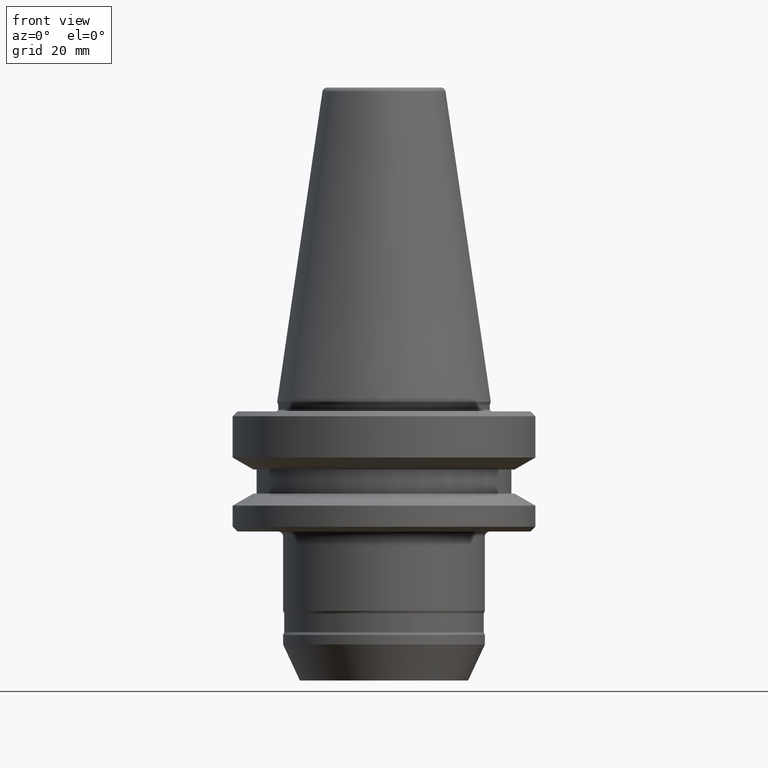
[diagram: clean part render]
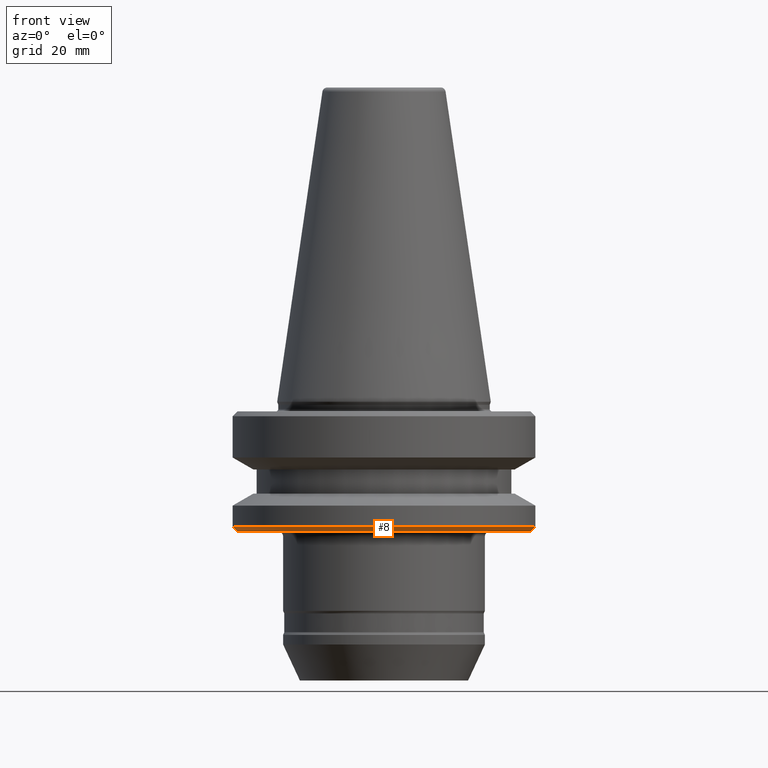
[diagram: same view with one face highlighted and labeled with its STEP entity id]
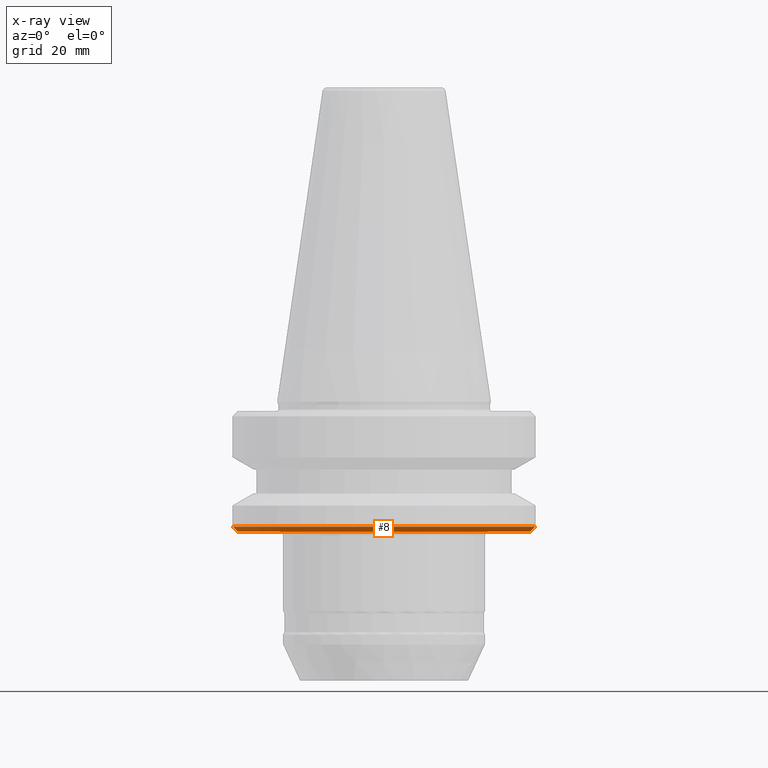
[diagram: x-ray of the same camera — body ghosted, the highlighted face saturated]
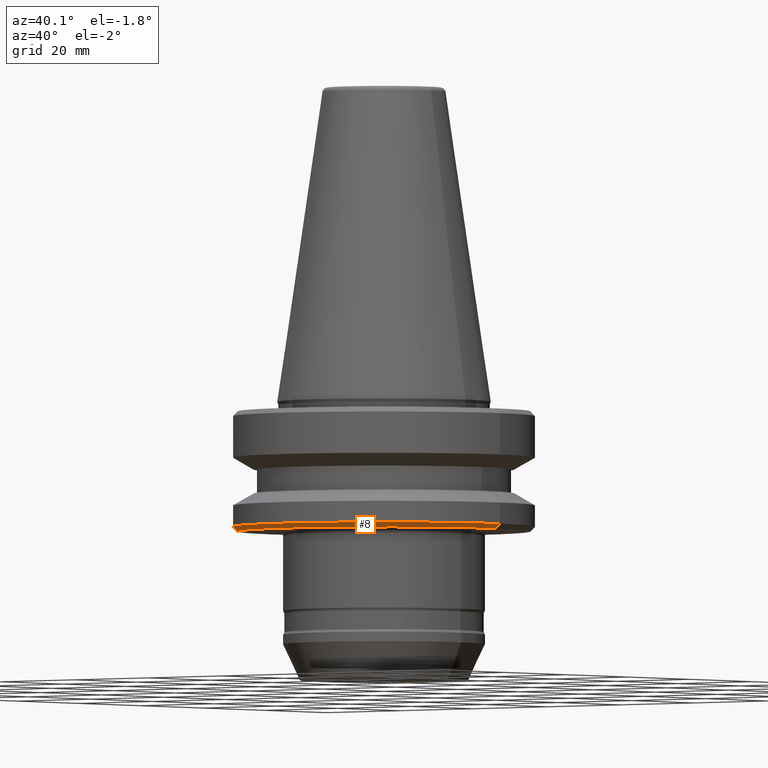
[diagram: same view with one face highlighted and labeled with its STEP entity id]
A machine part, front view. The second image highlights one B-rep face of the part: STEP entity #8.
The next image is the same camera in x-ray: the body ghosted, the highlighted face saturated — about 0% of this face is hidden behind the body in this view.
A second angle (auxiliary view) of the same face is appended — the face is thin or edge-on in the first view.
In plain terms, the highlighted conical surface has half-angle 45 deg.
Its self-contained STEP definition (entity closure, byte-faithful):
#8 = ADVANCED_FACE ( 'NONE', ( #1152 ), #631, .T. ) ;
#17 = EDGE_CURVE ( 'NONE', #1084, #798, #633, .T. ) ;
#19 = CARTESIAN_POINT ( 'NONE',  ( -30.50000000002032900, 3.735172737401917200E-015, -27.00000000009564300 ) ) ;
#35 = DIRECTION ( 'NONE',  ( 1.000000000000000000, 0.0000000000000000000, 0.0000000000000000000 ) ) ;
#107 = EDGE_CURVE ( 'NONE', #1030, #1084, #567, .T. ) ;
#162 = AXIS2_PLACEMENT_3D ( 'NONE', #451, #590, #35 ) ;
#255 = EDGE_CURVE ( 'NONE', #945, #798, #473, .T. ) ;
#258 = VECTOR ( 'NONE', #1021, 1000.000000000000000 ) ;
#270 = LINE ( 'NONE', #19, #258 ) ;
#347 = CARTESIAN_POINT ( 'NONE',  ( -31.50000000002021800, 3.857637417316638900E-015, -26.00000000009575300 ) ) ;
#359 = CARTESIAN_POINT ( 'NONE',  ( -30.50000000002032900, 3.796405077359277700E-015, -27.00000000009564300 ) ) ;
#395 = CARTESIAN_POINT ( 'NONE',  ( 0.0000000000000000000, 0.0000000000000000000, -27.00000000009564300 ) ) ;
#451 = CARTESIAN_POINT ( 'NONE',  ( 0.0000000000000000000, 0.0000000000000000000, -27.00000000009564300 ) ) ;
#473 = CIRCLE ( 'NONE', #970, 31.50000000002021800 ) ;
#475 = CARTESIAN_POINT ( 'NONE',  ( 30.50000000002032900, 0.0000000000000000000, -27.00000000009564300 ) ) ;
#499 = EDGE_CURVE ( 'NONE', #1030, #945, #270, .T. ) ;
#549 = CARTESIAN_POINT ( 'NONE',  ( 31.50000000002021800, 0.0000000000000000000, -26.00000000009575300 ) ) ;
#559 = CARTESIAN_POINT ( 'NONE',  ( 30.50000000002032900, 0.0000000000000000000, -27.00000000009564300 ) ) ;
#567 = CIRCLE ( 'NONE', #887, 30.50000000002032900 ) ;
#581 = DIRECTION ( 'NONE',  ( 0.7071067811865474600, 0.0000000000000000000, 0.7071067811865475700 ) ) ;
#585 = DIRECTION ( 'NONE',  ( -0.0000000000000000000, -0.0000000000000000000, 1.000000000000000000 ) ) ;
#590 = DIRECTION ( 'NONE',  ( -0.0000000000000000000, -0.0000000000000000000, 1.000000000000000000 ) ) ;
#631 = CONICAL_SURFACE ( 'NONE', #162, 30.50000000002032900, 0.7853981633974482800 ) ;
#633 = LINE ( 'NONE', #559, #637 ) ;
#637 = VECTOR ( 'NONE', #581, 1000.000000000000000 ) ;
#798 = VERTEX_POINT ( 'NONE', #549 ) ;
#838 = EDGE_LOOP ( 'NONE', ( #866, #865, #850, #1194 ) ) ;
#850 = ORIENTED_EDGE ( 'NONE', *, *, #17, .T. ) ;
#865 = ORIENTED_EDGE ( 'NONE', *, *, #107, .T. ) ;
#866 = ORIENTED_EDGE ( 'NONE', *, *, #499, .F. ) ;
#887 = AXIS2_PLACEMENT_3D ( 'NONE', #395, #1159, #980 ) ;
#945 = VERTEX_POINT ( 'NONE', #347 ) ;
#970 = AXIS2_PLACEMENT_3D ( 'NONE', #1124, #585, #1202 ) ;
#980 = DIRECTION ( 'NONE',  ( 1.000000000000000000, 0.0000000000000000000, 0.0000000000000000000 ) ) ;
#1021 = DIRECTION ( 'NONE',  ( -0.7071067811865474600, 8.659560562354931600E-017, 0.7071067811865475700 ) ) ;
#1030 = VERTEX_POINT ( 'NONE', #359 ) ;
#1084 = VERTEX_POINT ( 'NONE', #475 ) ;
#1124 = CARTESIAN_POINT ( 'NONE',  ( 0.0000000000000000000, 0.0000000000000000000, -26.00000000009575300 ) ) ;
#1152 = FACE_OUTER_BOUND ( 'NONE', #838, .T. ) ;
#1159 = DIRECTION ( 'NONE',  ( -0.0000000000000000000, -0.0000000000000000000, 1.000000000000000000 ) ) ;
#1194 = ORIENTED_EDGE ( 'NONE', *, *, #255, .F. ) ;
#1202 = DIRECTION ( 'NONE',  ( 1.000000000000000000, 0.0000000000000000000, 0.0000000000000000000 ) ) ;